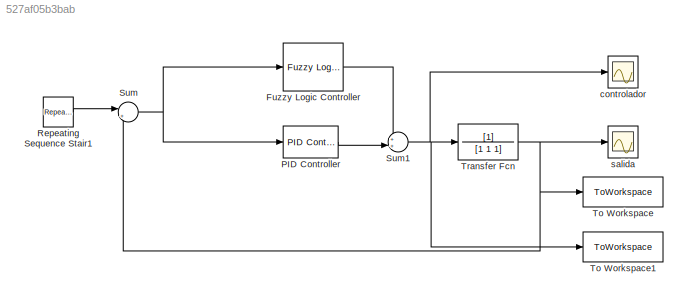
MODEL slx_527af05b3bab
KIND model
CONFIG AbsTol = auto
CONFIG FixedStep = auto
CONFIG MaxStep = auto
CONFIG MinStep = auto
CONFIG RelTol = auto
CONFIG SampleTimeConstraint = Unconstrained
CONFIG Solver = VariableStepAuto
CONFIG SolverMode = Auto
CONFIG SolverName = VariableStepAuto
CONFIG StartTime = 0.0
CONFIG StopTime = 30
BLOCK [Reference] Fuzzy Logic Controller  REF=fuzblock/Fuzzy Logic   (lib defined in mdl_858b3b3e7478)
Controller
  Ports = [1, 1]
  SourceBlock = fuzblock/Fuzzy Logic \nController
  SourceType = FIS
BLOCK [Reference] PID Controller  REF=simulink/Continuous/PID Controller
  Ports = [1, 1]
  SourceBlock = simulink/Continuous/PID Controller
  SourceType = PID 1dof
BLOCK [Reference] Repeating Sequence Stair1  REF=simulink/Sources/Repeating
Sequence
Stair
  Ports = [0, 1]
  SourceBlock = simulink/Sources/Repeating\nSequence\nStair
  SourceType = Repeating Sequence Stair
BLOCK [Sum] Sum
  IconShape = round
  InputSameDT = off
  Inputs = |+-
  OutDataTypeStr = Inherit: Inherit via internal rule
  Ports = [2, 1]
  SaturateOnIntegerOverflow = off
BLOCK [Sum] Sum1
  IconShape = round
  InputSameDT = off
  Inputs = ++|
  OutDataTypeStr = Inherit: Inherit via internal rule
  Ports = [2, 1]
  SaturateOnIntegerOverflow = off
BLOCK [ToWorkspace] To Workspace
  FixptAsFi = on
  MaxDataPoints = inf
  Ports = [1]
  SampleTime = -1
  Save2DSignal = 3-D array (concatenate along third dimension)
  SaveFormat = Timeseries
  VariableName = salida
BLOCK [ToWorkspace] To Workspace1
  FixptAsFi = on
  MaxDataPoints = inf
  Ports = [1]
  SampleTime = -1
  Save2DSignal = 3-D array (concatenate along third dimension)
  SaveFormat = Timeseries
  VariableName = controlador
BLOCK [TransferFcn] Transfer Fcn
  Denominator = [1 1 1]
BLOCK [Scope] controlador
  Ports = [1]
  ScopeSpecificationString = Simulink.scopes.TimeScopeBlockCfg('CurrentConfiguration', extmgr.ConfigurationSet(extmgr.Configuration('Core','General UI',true),extmgr.Configuration('Core','Source UI',true),extmgr.Configuration('Sources','WiredSimulink',true,'DataLoggingVariableName','ScopeData1'),extmgr.Configuration('Visuals','Time Domain',true,'SerializedDisplays',{struct('MinYLimReal','-12.53013','MaxYLimReal','113.6589','YL...<+1421ch>
BLOCK [Scope] salida 
  Ports = [1]
  ScopeSpecificationString = Simulink.scopes.TimeScopeBlockCfg('CurrentConfiguration', extmgr.ConfigurationSet(extmgr.Configuration('Core','General UI',true),extmgr.Configuration('Core','Source UI',true),extmgr.Configuration('Sources','WiredSimulink',true),extmgr.Configuration('Visuals','Time Domain',true,'SerializedDisplays',{struct('MinYLimReal','-0.12499','MaxYLimReal','1.12489','YLabelReal','','MinYLimMag','0.00000','MaxY...<+1403ch>
LINE Fuzzy Logic Controller:1 -> Sum1:1
LINE PID Controller:1 -> Sum1:2
LINE Repeating Sequence Stair1:1 -> Sum:1
NET Sum1:1 -> To Workspace1:1, Transfer Fcn:1, controlador:1
NET Sum:1 -> Fuzzy Logic Controller:1, PID Controller:1
NET Transfer Fcn:1 -> Sum:2, To Workspace:1, salida :1
note: NET lines group one-source signal fan-out (src -> all destinations, sorted); 1:1 wires keep LINE
